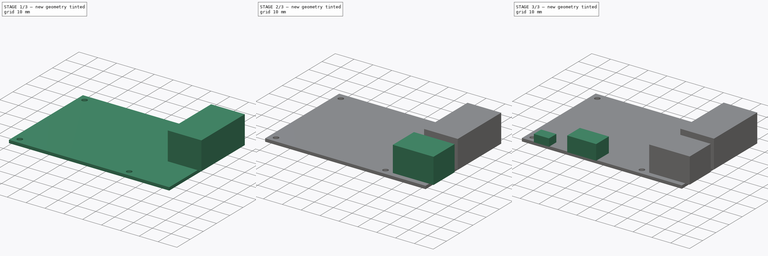
[diagram: build sequence overview — one tinted view per stage of 3, left to right]
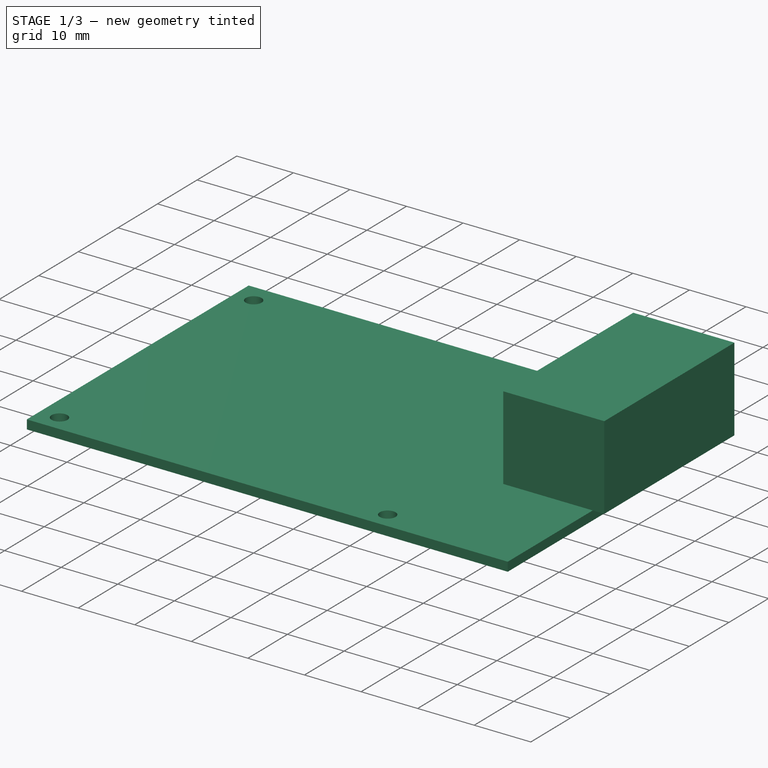
[diagram: stage 1 of 3 — iso view after this stage's code; geometry added in this stage tinted green]
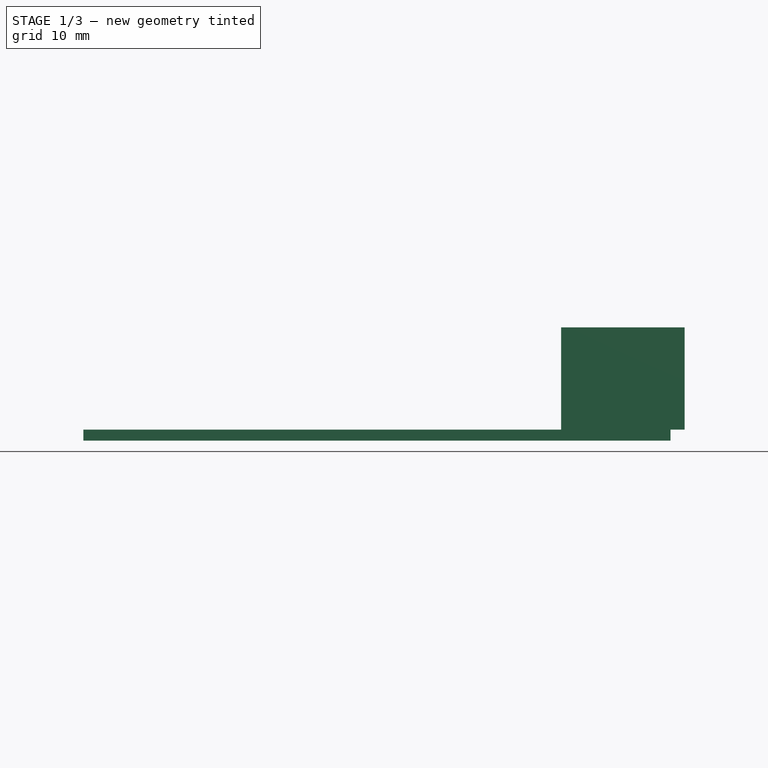
[diagram: stage 1 of 3 — front view after this stage's code; geometry added in this stage tinted green]
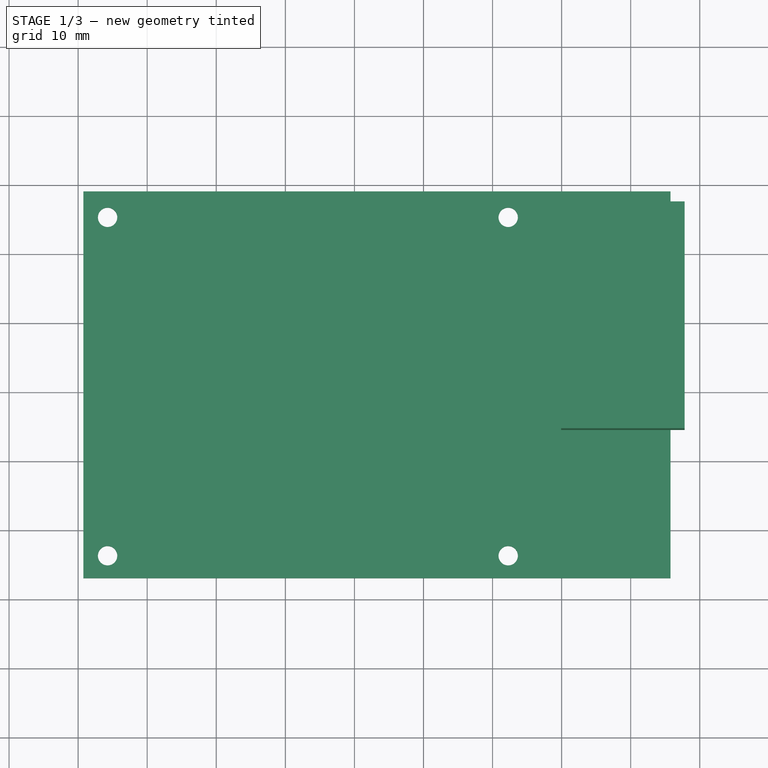
[diagram: stage 1 of 3 — top view after this stage's code; geometry added in this stage tinted green]
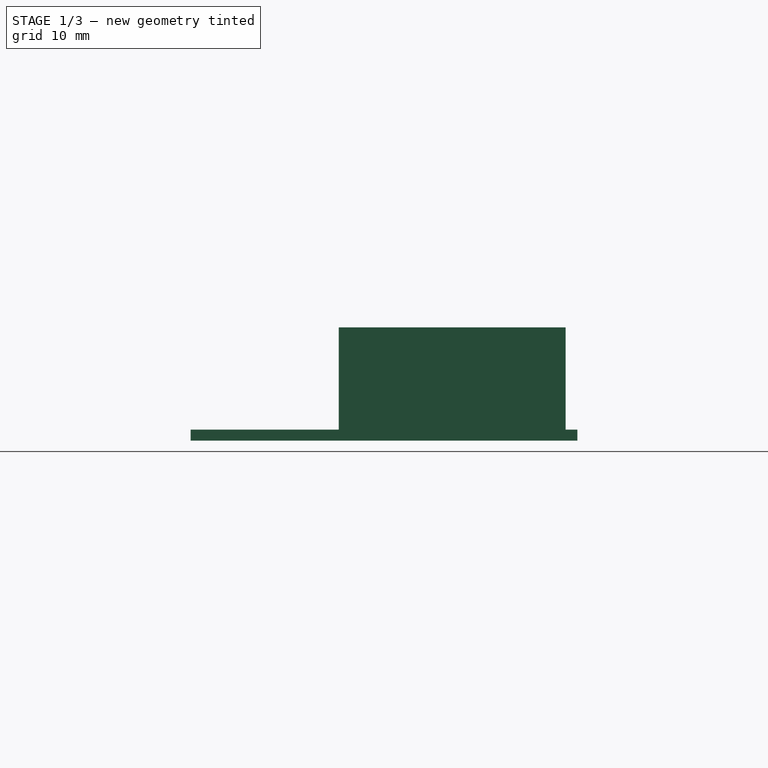
[diagram: stage 1 of 3 — right view after this stage's code; geometry added in this stage tinted green]
FCSTD DOCUMENT  (FreeCAD 0.16R6712 (Git))
Label: 1220_Raspberry_PCB
License: All rights reserved
LicenseURL: http://en.wikipedia.org/wiki/All_rights_reserved
objects: Sketcher::SketchObject×7, PartDesign::Pad×6, PartDesign::Pocket×1, Part::MultiFuse×1
note: 22 computed .brp shape members not serialized (recipe doc carries the construction recipe); baked Part::Feature solids carry a one-line shape summary decoded from their .brp

FEATURE [Sketcher::SketchObject] Sketch
  sketch-geometry (4):
    g0: LineSegment StartX=-159.237 StartY=29.0847 StartZ=0 EndX=-159.237 EndY=-26.9153 EndZ=0
    g1: LineSegment StartX=-159.237 StartY=-26.9153 StartZ=0 EndX=-74.2375 EndY=-26.9153 EndZ=0
    g2: LineSegment StartX=-74.2375 StartY=-26.9153 StartZ=0 EndX=-74.2375 EndY=29.0847 EndZ=0
    g3: LineSegment StartX=-74.2375 StartY=29.0847 StartZ=0 EndX=-159.237 EndY=29.0847 EndZ=0
  constraints (10):
    c: Vertical(g0)
    c: Horizontal(g1)
    c: Coincident(g2,g1)
    c: Vertical(g2)
    c: Coincident(g3,g2)
    c: Coincident(g3,g0)
    c: Horizontal(g3)
    c: DistanceX(g3,g3) = 85
    c: DistanceY(g2,g2) = 56
    c: Coincident(g1,g0)
FEATURE [PartDesign::Pad] Pad
  Length = 1.6
  Length2 = 100
  Sketch = -> Sketch
  Type = 0
FEATURE [Sketcher::SketchObject] Sketch001
  ExternalGeometry = -> [Pad]
  Placement = pos=(0,0,1.6) rot=(0,0,1;0rad)
  Support = -> Pad [Face6]
  sketch-geometry (10):
    g0: LineSegment [constr] StartX=-155.737 StartY=25.3347 StartZ=0 EndX=-97.7375 EndY=25.3347 EndZ=0
    g1: LineSegment [constr] StartX=-97.7375 StartY=25.3347 StartZ=0 EndX=-97.7375 EndY=-23.6653 EndZ=0
    g2: LineSegment [constr] StartX=-97.7375 StartY=-23.6653 StartZ=0 EndX=-155.737 EndY=-23.6653 EndZ=0
    g3: LineSegment [constr] StartX=-155.737 StartY=-23.6653 StartZ=0 EndX=-155.737 EndY=25.3347 EndZ=0
    g4: LineSegment [constr] StartX=-155.737 StartY=25.3347 StartZ=0 EndX=-155.737 EndY=29.0847 EndZ=0
    g5: Circle CenterX=-155.737 CenterY=25.3347 CenterZ=0 NormalX=0 NormalY=0 NormalZ=1 Radius=1.4
    g6: Circle [constr] CenterX=-97.7375 CenterY=25.3347 CenterZ=0 NormalX=0 NormalY=0 NormalZ=1 Radius=0
    g7: Circle CenterX=-97.7375 CenterY=25.3347 CenterZ=0 NormalX=0 NormalY=0 NormalZ=1 Radius=1.4
    g8: Circle CenterX=-97.7375 CenterY=-23.6653 CenterZ=0 NormalX=0 NormalY=0 NormalZ=1 Radius=1.4
    g9: Circle CenterX=-155.737 CenterY=-23.6622 CenterZ=0 NormalX=0 NormalY=0 NormalZ=1 Radius=1.4
  constraints (23):
    c: Coincident(g0,g1)
    c: Coincident(g1,g2)
    c: Coincident(g2,g3)
    c: Coincident(g3,g0)
    c: Horizontal(g0)
    c: Horizontal(g2)
    c: Vertical(g1)
    c: Vertical(g3)
    c: Distance(g3) = 49
    c: Distance(g2) = 58
    c: Coincident(g4,g0)
    c: PointOnObject(g4,g-3)
    c: Perpendicular(g0,g4)
    c: Distance(g4) = 3.75
    c: Distance(g4,g-5) = 3.5
    c: Coincident(g5,g0)
    c: Coincident(g6,g0)
    c: Coincident(g7,g0)
    c: Coincident(g8,g1)
    c: Radius(g5) = 1.4
    c: Equal(g5,g7)
    c: Equal(g7,g8)
    c: Equal(g8,g9)
FEATURE [PartDesign::Pocket] Pocket
  Length = 5
  Sketch = -> Sketch001
  Type = 0
FEATURE [Sketcher::SketchObject] Sketch002
  Placement = pos=(0,0,1.6) rot=(0,0,1;0rad)
  Support = -> Pocket [Face5]
  sketch-geometry (4):
    g0: LineSegment StartX=-90.065 StartY=27.3796 StartZ=0 EndX=-72.1974 EndY=27.3796 EndZ=0
    g1: LineSegment StartX=-72.1974 StartY=27.3796 StartZ=0 EndX=-72.1974 EndY=-5.46538 EndZ=0
    g2: LineSegment StartX=-72.1974 StartY=-5.46538 StartZ=0 EndX=-90.065 EndY=-5.46538 EndZ=0
    g3: LineSegment StartX=-90.065 StartY=-5.46538 StartZ=0 EndX=-90.065 EndY=27.3796 EndZ=0
  constraints (8):
    c: Coincident(g0,g1)
    c: Coincident(g2,g3)
    c: Coincident(g3,g0)
    c: Horizontal(g0)
    c: Horizontal(g2)
    c: Vertical(g1)
    c: Vertical(g3)
    c: Coincident(g1,g2)
FEATURE [PartDesign::Pad] Pad001
  Length = 14.8
  Length2 = 100
  Sketch = -> Sketch002
  Type = 0
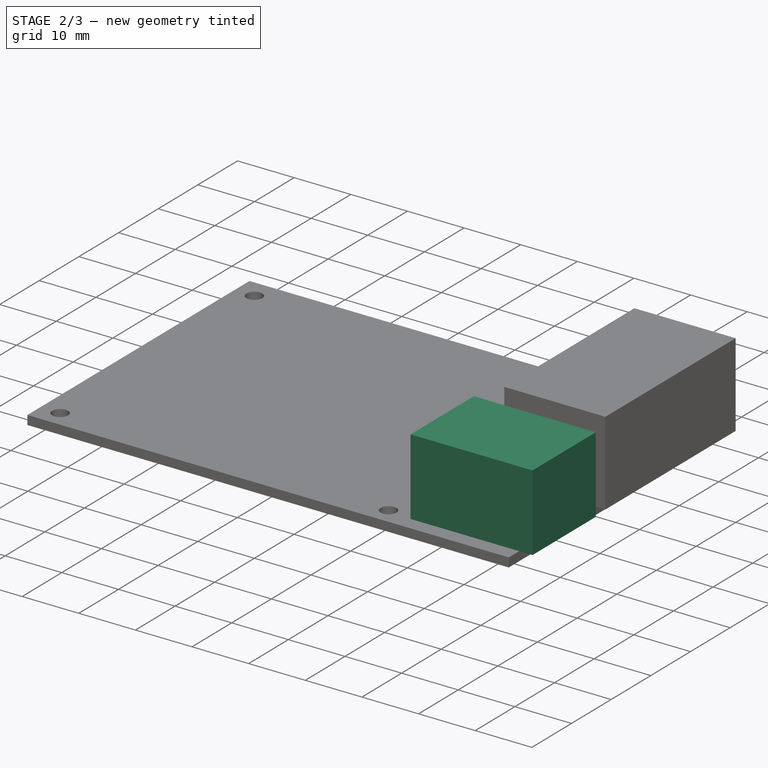
[diagram: stage 2 of 3 — iso view after this stage's code; geometry added in this stage tinted green]
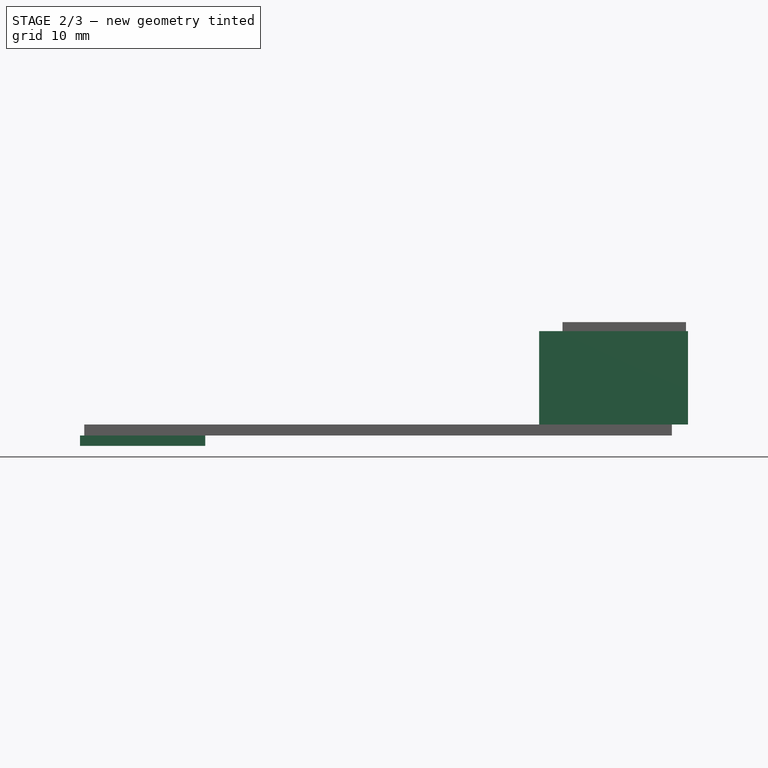
[diagram: stage 2 of 3 — front view after this stage's code; geometry added in this stage tinted green]
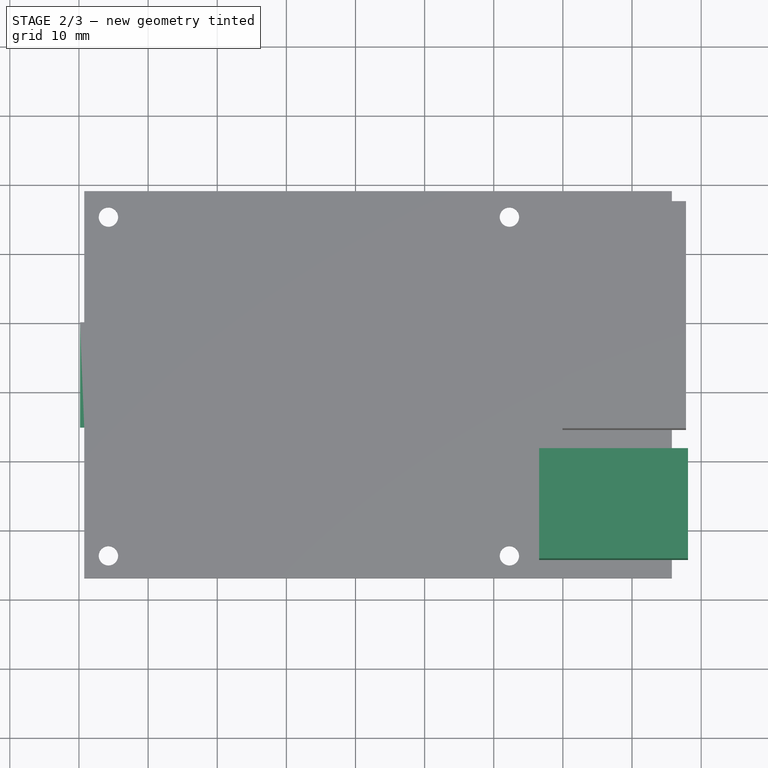
[diagram: stage 2 of 3 — top view after this stage's code; geometry added in this stage tinted green]
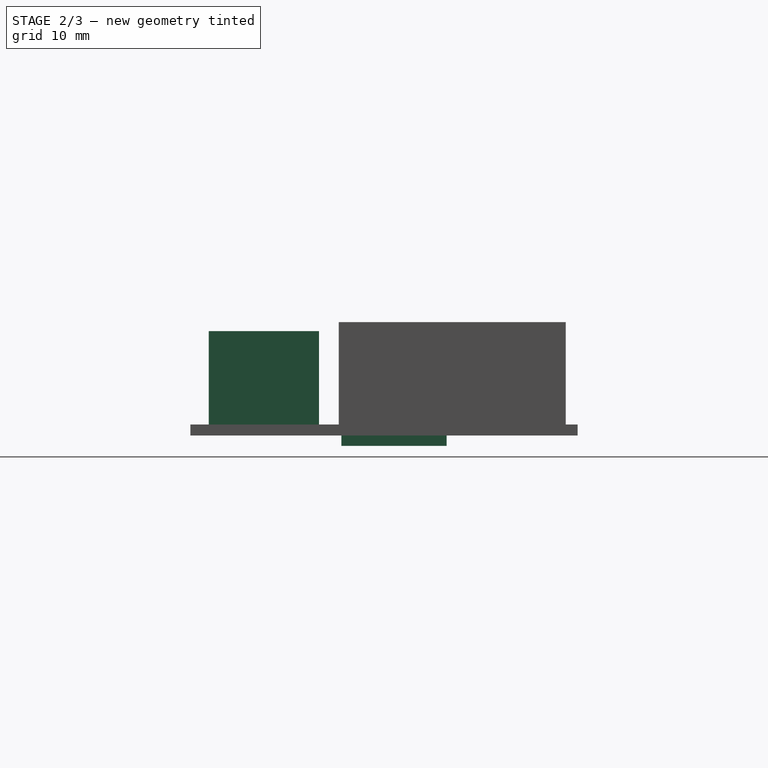
[diagram: stage 2 of 3 — right view after this stage's code; geometry added in this stage tinted green]
FEATURE [Sketcher::SketchObject] Sketch003
  Placement = pos=(0,0,1.6) rot=(0,0,1;0rad)
  Support = -> Pad001 [Face5]
  sketch-geometry (4):
    g0: LineSegment StartX=-71.8972 StartY=-8.32014 StartZ=0 EndX=-93.431 EndY=-8.32014 EndZ=0
    g1: LineSegment StartX=-93.431 StartY=-8.32014 StartZ=0 EndX=-93.431 EndY=-24.2729 EndZ=0
    g2: LineSegment StartX=-93.431 StartY=-24.2729 StartZ=0 EndX=-71.8972 EndY=-24.2729 EndZ=0
    g3: LineSegment StartX=-71.8972 StartY=-24.2729 StartZ=0 EndX=-71.8972 EndY=-8.32014 EndZ=0
  constraints (8):
    c: Coincident(g0,g1)
    c: Coincident(g1,g2)
    c: Coincident(g2,g3)
    c: Coincident(g3,g0)
    c: Horizontal(g0)
    c: Horizontal(g2)
    c: Vertical(g1)
    c: Vertical(g3)
FEATURE [PartDesign::Pad] Pad002
  Length = 13.5
  Length2 = 100
  Sketch = -> Sketch003
  Type = 0
FEATURE [Sketcher::SketchObject] Sketch004
  Placement = pos=(0,0,0) rot=(1,0,0;3.14159rad)
  Support = -> Pad002 [Face4]
  sketch-geometry (4):
    g0: LineSegment StartX=-159.856 StartY=5.07463 StartZ=0 EndX=-141.728 EndY=5.07463 EndZ=0
    g1: LineSegment StartX=-141.728 StartY=5.07463 StartZ=0 EndX=-141.728 EndY=-10.1478 EndZ=0
    g2: LineSegment StartX=-141.728 StartY=-10.1478 StartZ=0 EndX=-159.856 EndY=-10.1478 EndZ=0
    g3: LineSegment StartX=-159.856 StartY=-10.1478 StartZ=0 EndX=-159.856 EndY=5.07463 EndZ=0
  constraints (8):
    c: Coincident(g0,g1)
    c: Coincident(g1,g2)
    c: Coincident(g2,g3)
    c: Coincident(g3,g0)
    c: Horizontal(g0)
    c: Horizontal(g2)
    c: Vertical(g1)
    c: Vertical(g3)
FEATURE [PartDesign::Pad] Pad003
  Length = 1.5
  Length2 = 100
  Sketch = -> Sketch004
  Type = 0
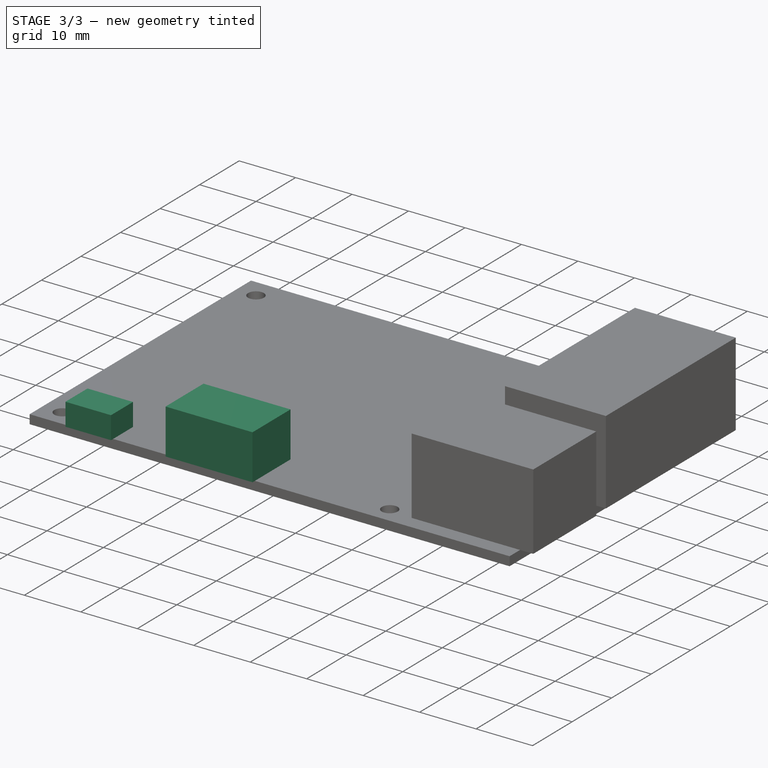
[diagram: stage 3 of 3 — iso view after this stage's code; geometry added in this stage tinted green]
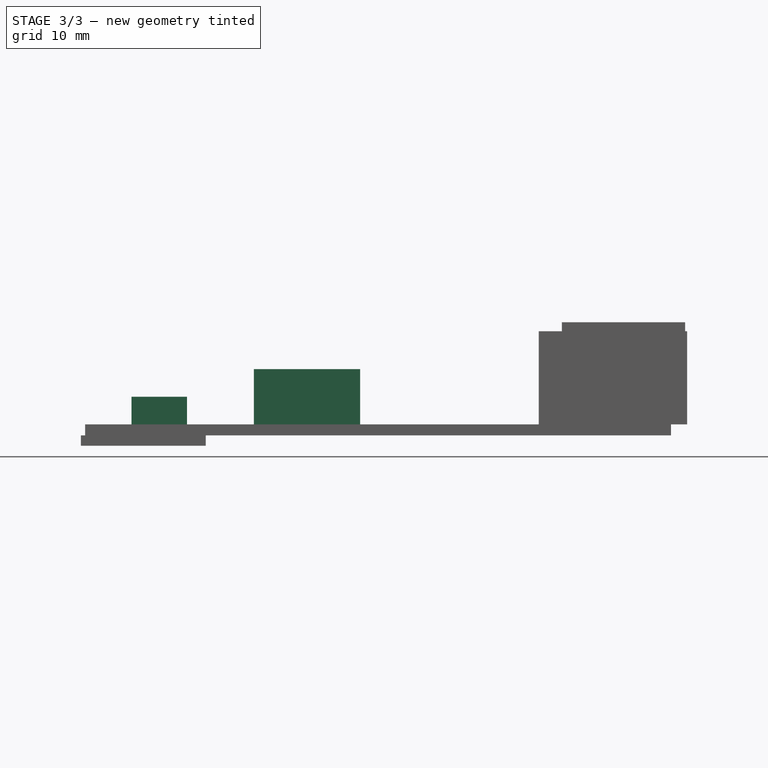
[diagram: stage 3 of 3 — front view after this stage's code; geometry added in this stage tinted green]
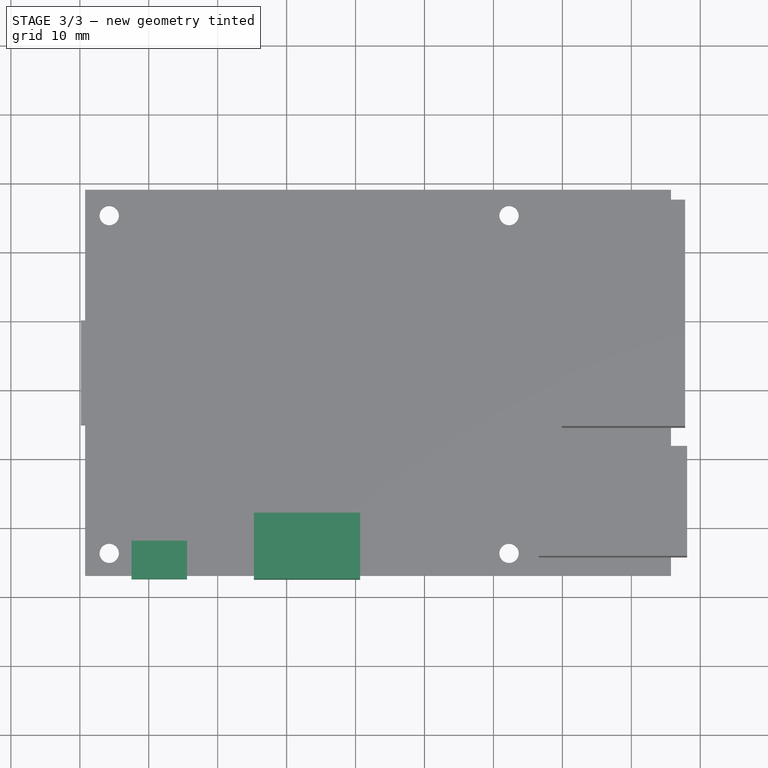
[diagram: stage 3 of 3 — top view after this stage's code; geometry added in this stage tinted green]
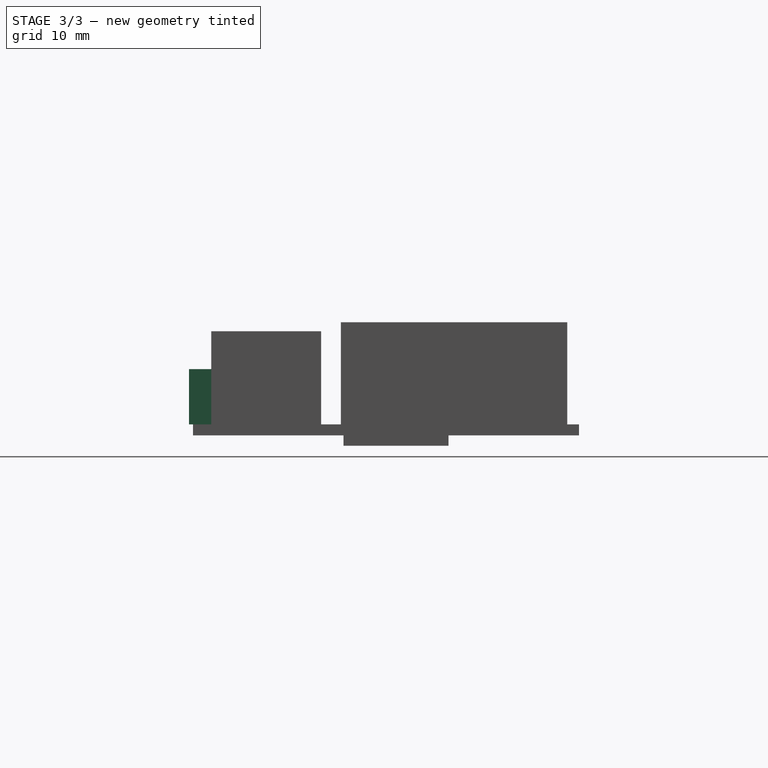
[diagram: stage 3 of 3 — right view after this stage's code; geometry added in this stage tinted green]
FEATURE [Sketcher::SketchObject] Sketch005
  Placement = pos=(0,0,1.6) rot=(0,0,1;0rad)
  Support = -> Pad003 [Face5]
  sketch-geometry (4):
    g0: LineSegment StartX=-152.508 StartY=-21.8915 StartZ=0 EndX=-144.448 EndY=-21.8915 EndZ=0
    g1: LineSegment StartX=-144.448 StartY=-21.8915 StartZ=0 EndX=-144.448 EndY=-27.4512 EndZ=0
    g2: LineSegment StartX=-144.448 StartY=-27.4512 StartZ=0 EndX=-152.508 EndY=-27.4512 EndZ=0
    g3: LineSegment StartX=-152.508 StartY=-27.4512 StartZ=0 EndX=-152.508 EndY=-21.8915 EndZ=0
  constraints (8):
    c: Coincident(g0,g1)
    c: Coincident(g1,g2)
    c: Coincident(g2,g3)
    c: Coincident(g3,g0)
    c: Horizontal(g0)
    c: Horizontal(g2)
    c: Vertical(g1)
    c: Vertical(g3)
FEATURE [PartDesign::Pad] Pad004
  Length = 4
  Length2 = 100
  Sketch = -> Sketch005
  Type = 0
FEATURE [Sketcher::SketchObject] Sketch006
  Placement = pos=(0,0,1.6) rot=(0,0,1;0rad)
  Support = -> Pad004 [Face5]
  sketch-geometry (4):
    g0: LineSegment StartX=-134.751 StartY=-17.9095 StartZ=0 EndX=-119.347 EndY=-17.9095 EndZ=0
    g1: LineSegment StartX=-119.347 StartY=-17.9095 StartZ=0 EndX=-119.347 EndY=-27.4979 EndZ=0
    g2: LineSegment StartX=-119.347 StartY=-27.4979 StartZ=0 EndX=-134.751 EndY=-27.4979 EndZ=0
    g3: LineSegment StartX=-134.751 StartY=-27.4979 StartZ=0 EndX=-134.751 EndY=-17.9095 EndZ=0
  constraints (8):
    c: Coincident(g0,g1)
    c: Coincident(g1,g2)
    c: Coincident(g2,g3)
    c: Coincident(g3,g0)
    c: Horizontal(g0)
    c: Horizontal(g2)
    c: Vertical(g1)
    c: Vertical(g3)
FEATURE [PartDesign::Pad] Pad005
  Length = 8
  Length2 = 100
  Sketch = -> Sketch006
  Type = 0
FEATURE [Part::MultiFuse] Fusion
  Shapes = -> [Pad005,Pad001,Pad004]
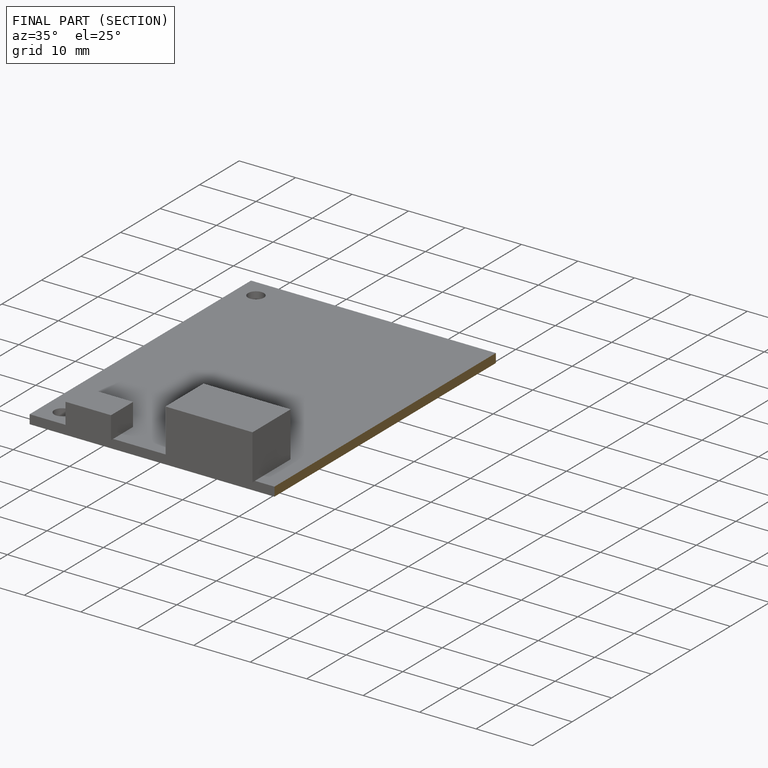
[diagram: finished part — half-section view (interior)]
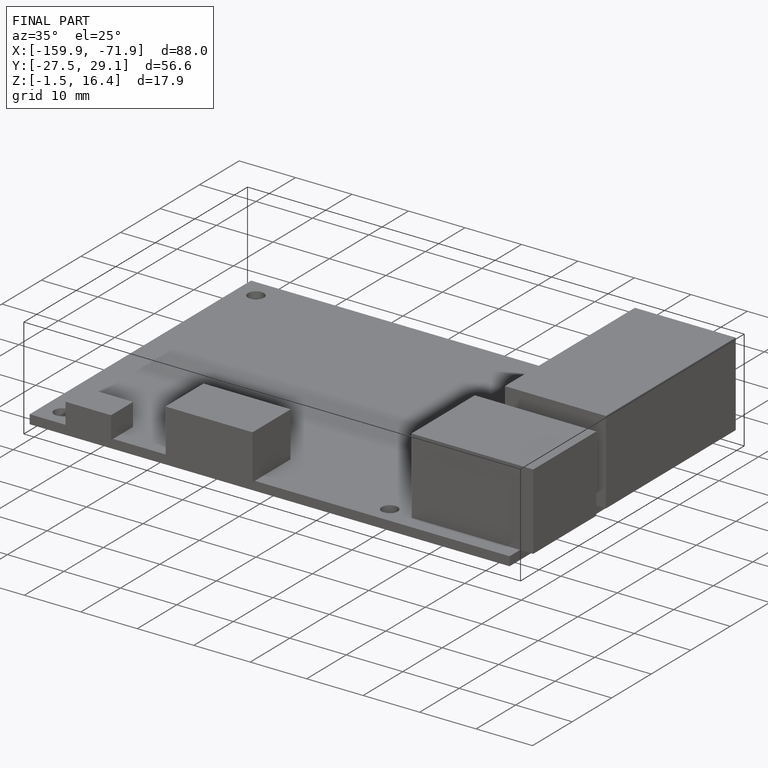
[diagram: finished part — iso view with bounding-box wireframe]
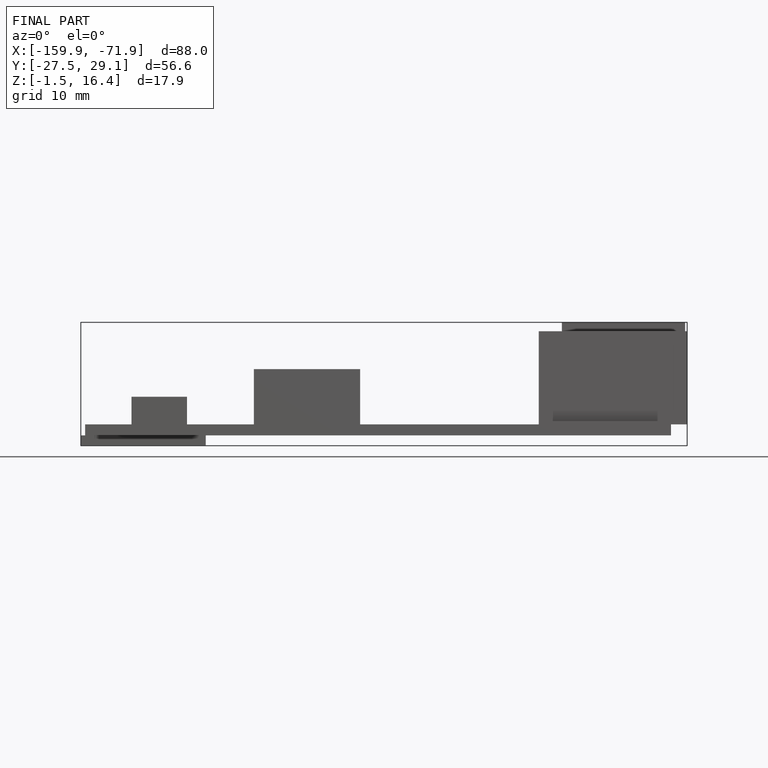
[diagram: finished part — front view with bounding-box wireframe]
